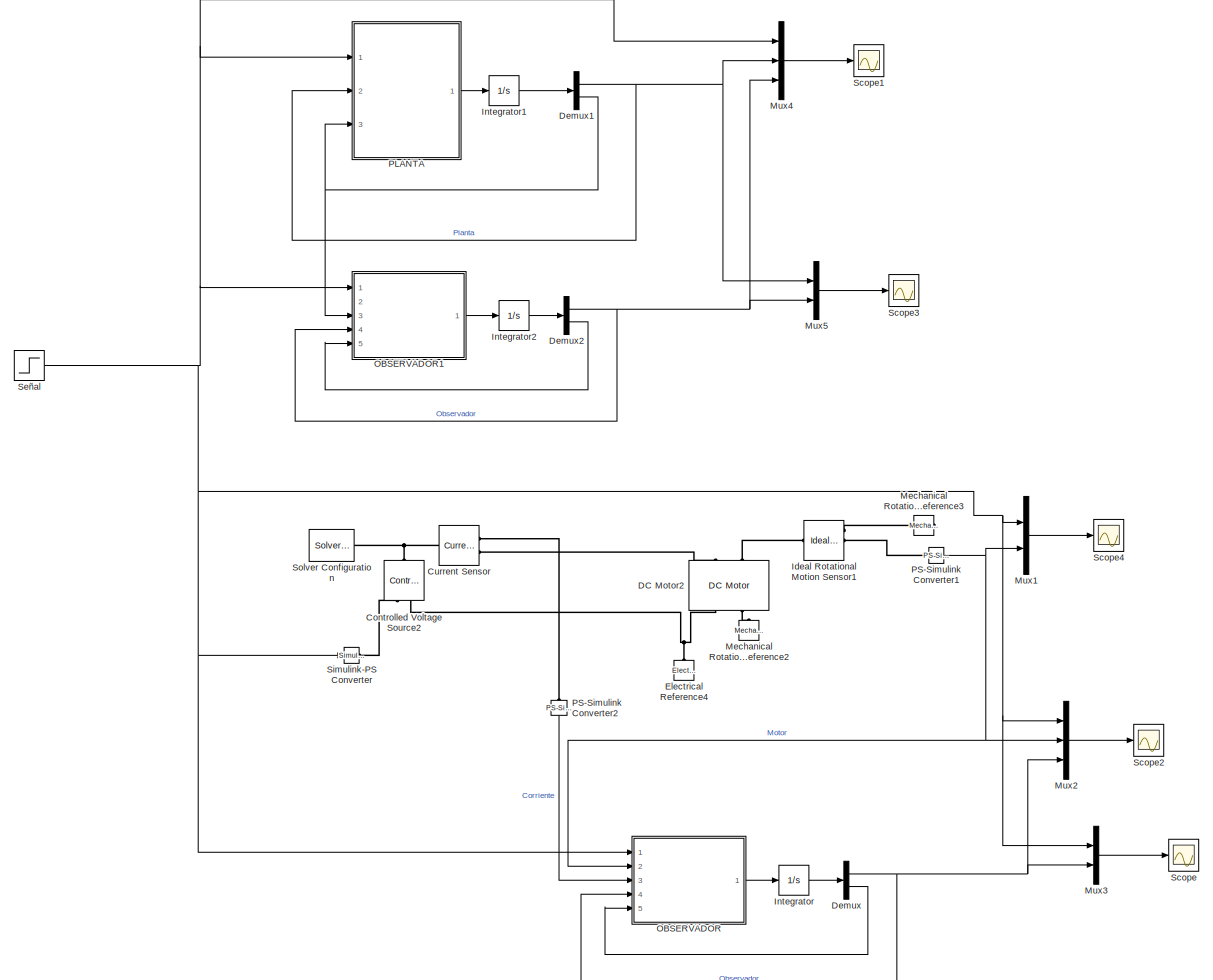
[diagram: root canvas - part 1/2, most of the canvas]
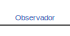
[diagram: root canvas - part 2/2, bottom center region]
MODEL slx_1d7b3e0388a3
KIND model
CONFIG AbsTol = auto
CONFIG EnableMultiTasking = off
CONFIG FixedStep = auto
CONFIG MaxStep = auto
CONFIG MinStep = auto
CONFIG RelTol = 1e-3
CONFIG SampleTimeConstraint = Unconstrained
CONFIG SolverName = VariableStepAuto
CONFIG StartTime = 0.0
CONFIG StopTime = 10.0
BLOCK [Reference] Controlled Voltage Source2  REF=fl_lib/Electrical/Electrical Sources/Controlled Voltage
Source
  NameLocation = right
  Ports = [0, 0, 0, 0, 0, 1, 2]
  SourceBlock = fl_lib/Electrical/Electrical Sources/Controlled Voltage\nSource
  SourceProductBaseCode = SS
  SourceType = Controlled Voltage\nSource
BLOCK [Reference] Current Sensor  REF=fl_lib/Electrical/Electrical Sensors/Current Sensor
  Ports = [0, 0, 0, 0, 0, 1, 2]
  SourceBlock = fl_lib/Electrical/Electrical Sensors/Current Sensor
  SourceProductBaseCode = SS
  SourceType = Current Sensor
BLOCK [Reference] DC Motor2  REF=ee_lib/Electromechanical/Brushed Motors/DC Motor
  NameLocation = right
  Ports = [0, 0, 0, 0, 0, 2, 2]
  SourceBlock = ee_lib/Electromechanical/Brushed Motors/DC Motor
  SourceProductBaseCode = PS
  SourceType = DC Motor
BLOCK [Demux] Demux
  Outputs = 2
  Ports = [1, 2]
BLOCK [Demux] Demux1
  Outputs = 2
  Ports = [1, 2]
BLOCK [Demux] Demux2
  Outputs = 2
  Ports = [1, 2]
BLOCK [Reference] Electrical Reference4  REF=fl_lib/Electrical/Electrical Elements/Electrical Reference
  NameLocation = right
  Ports = [0, 0, 0, 0, 0, 1]
  SourceBlock = fl_lib/Electrical/Electrical Elements/Electrical Reference
  SourceProductBaseCode = SS
  SourceType = Electrical Reference
BLOCK [Reference] Ideal Rotational Motion Sensor1  REF=fl_lib/Mechanical/Mechanical Sensors/Ideal Rotational
Motion Sensor
  Ports = [0, 0, 0, 0, 0, 1, 3]
  SourceBlock = fl_lib/Mechanical/Mechanical Sensors/Ideal Rotational\nMotion Sensor
  SourceProductBaseCode = SS
  SourceType = Ideal Rotational\nMotion Sensor
BLOCK [Integrator] Integrator
  Ports = [1, 1]
BLOCK [Integrator] Integrator1
  Ports = [1, 1]
BLOCK [Integrator] Integrator2
  Ports = [1, 1]
BLOCK [Reference] Mechanical Rotational Reference2  REF=fl_lib/Mechanical/Rotational Elements/Mechanical
Rotational Reference
  NameLocation = right
  Ports = [0, 0, 0, 0, 0, 1]
  SourceBlock = fl_lib/Mechanical/Rotational Elements/Mechanical\nRotational Reference
  SourceProductBaseCode = SS
  SourceType = Mechanical\nRotational Reference
BLOCK [Reference] Mechanical Rotational Reference3  REF=fl_lib/Mechanical/Rotational Elements/Mechanical
Rotational Reference
  NameLocation = top
  Ports = [0, 0, 0, 0, 0, 1]
  SourceBlock = fl_lib/Mechanical/Rotational Elements/Mechanical\nRotational Reference
  SourceProductBaseCode = SS
  SourceType = Mechanical\nRotational Reference
BLOCK [Mux] Mux1
  DisplayOption = bar
  Inputs = 2
  Ports = [2, 1]
BLOCK [Mux] Mux2
  DisplayOption = bar
  Inputs = 3
  Ports = [3, 1]
BLOCK [Mux] Mux3
  DisplayOption = bar
  Inputs = 2
  Ports = [2, 1]
BLOCK [Mux] Mux4
  DisplayOption = bar
  Inputs = 3
  Ports = [3, 1]
BLOCK [Mux] Mux5
  DisplayOption = bar
  Inputs = 2
  Ports = [2, 1]
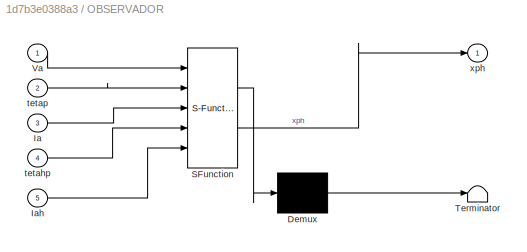
BLOCK [SubSystem] OBSERVADOR
  ErrorFcn = Stateflow.Translate.translate
  PermitHierarchicalResolution = ExplicitOnly
  Ports = [5, 1]
  RequestExecContextInheritance = off
  SFBlockType = MATLAB Function
  TreatAsAtomicUnit = on
BLOCK [Demux] OBSERVADOR/ Demux 
  Outputs = 1
  Ports = [1, 1]
BLOCK [S-Function] OBSERVADOR/ SFunction 
  EnableBusSupport = on
  FunctionName = sf_sfun
  PortCounts = [5 2]
  Ports = [5, 2]
  SFcnIsStateOwnerBlock = off
  SFunctionDeploymentMode = off
  Tag = Stateflow S-Function 2
BLOCK [Terminator] OBSERVADOR/ Terminator 
BLOCK [Inport] OBSERVADOR/Ia
  Port = 3
BLOCK [Inport] OBSERVADOR/Iah
  Port = 5
BLOCK [Inport] OBSERVADOR/Va
BLOCK [Inport] OBSERVADOR/tetahp
  Port = 4
BLOCK [Inport] OBSERVADOR/tetap
  Port = 2
BLOCK [Outport] OBSERVADOR/xph
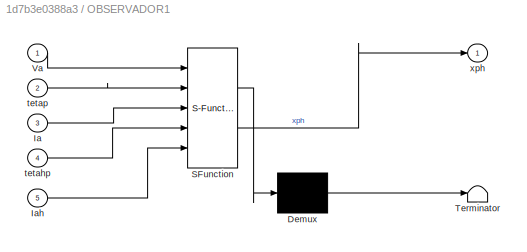
BLOCK [SubSystem] OBSERVADOR1
  ErrorFcn = Stateflow.Translate.translate
  PermitHierarchicalResolution = ExplicitOnly
  Ports = [5, 1]
  RequestExecContextInheritance = off
  SFBlockType = MATLAB Function
  TreatAsAtomicUnit = on
BLOCK [Demux] OBSERVADOR1/ Demux 
  Outputs = 1
  Ports = [1, 1]
BLOCK [S-Function] OBSERVADOR1/ SFunction 
  EnableBusSupport = on
  FunctionName = sf_sfun
  PortCounts = [5 2]
  Ports = [5, 2]
  SFcnIsStateOwnerBlock = off
  SFunctionDeploymentMode = off
  Tag = Stateflow S-Function 3
BLOCK [Terminator] OBSERVADOR1/ Terminator 
BLOCK [Inport] OBSERVADOR1/Ia
  Port = 3
BLOCK [Inport] OBSERVADOR1/Iah
  Port = 5
BLOCK [Inport] OBSERVADOR1/Va
BLOCK [Inport] OBSERVADOR1/tetahp
  Port = 4
BLOCK [Inport] OBSERVADOR1/tetap
  Port = 2
BLOCK [Outport] OBSERVADOR1/xph
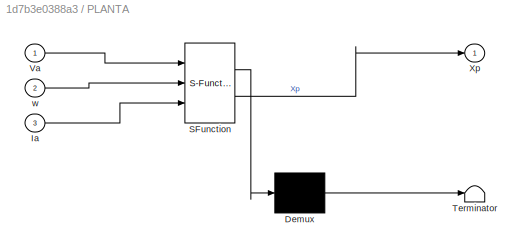
BLOCK [SubSystem] PLANTA
  ErrorFcn = Stateflow.Translate.translate
  PermitHierarchicalResolution = ExplicitOnly
  Ports = [3, 1]
  RequestExecContextInheritance = off
  SFBlockType = MATLAB Function
  TreatAsAtomicUnit = on
BLOCK [Demux] PLANTA/ Demux 
  Outputs = 1
  Ports = [1, 1]
BLOCK [S-Function] PLANTA/ SFunction 
  EnableBusSupport = on
  FunctionName = sf_sfun
  PortCounts = [3 2]
  Ports = [3, 2]
  SFcnIsStateOwnerBlock = off
  SFunctionDeploymentMode = off
  Tag = Stateflow S-Function 1
BLOCK [Terminator] PLANTA/ Terminator 
BLOCK [Inport] PLANTA/Ia
  Port = 3
BLOCK [Inport] PLANTA/Va
BLOCK [Outport] PLANTA/Xp
BLOCK [Inport] PLANTA/w
  Port = 2
BLOCK [Reference] PS-Simulink Converter1  REF=nesl_utility/PS-Simulink
Converter
  Ports = [0, 1, 0, 0, 0, 1]
  SourceBlock = nesl_utility/PS-Simulink\nConverter
  SourceProductBaseCode = SS
  SourceType = PS-Simulink\nConverter
BLOCK [Reference] PS-Simulink Converter2  REF=nesl_utility/PS-Simulink
Converter
  NameLocation = left
  Ports = [0, 1, 0, 0, 0, 1]
  SourceBlock = nesl_utility/PS-Simulink\nConverter
  SourceProductBaseCode = SS
  SourceType = PS-Simulink\nConverter
BLOCK [Scope] Scope
  Floating = off
  NumInputPorts = 1
  Ports = [1]
  ScopeSpecificationString = Simulink.scopes.TimeScopeBlockCfg('CurrentConfiguration', extmgr.ConfigurationSet(extmgr.Configuration('Core','General UI',true),extmgr.Configuration('Core','Source UI',true),extmgr.Configuration('Sources','WiredSimulink',true,'DataLoggingVariableName','ScopeData1'),extmgr.Configuration('Visuals','Time Domain',true,'SerializedDisplays',{struct('MinYLimReal','-5.04074','MaxYLimReal','45.36669','YLa...<+1483ch>
BLOCK [Scope] Scope1
  Floating = off
  NumInputPorts = 1
  Ports = [1]
  ScopeSpecificationString = Simulink.scopes.TimeScopeBlockCfg('CurrentConfiguration', extmgr.ConfigurationSet(extmgr.Configuration('Core','General UI',true),extmgr.Configuration('Core','Source UI',true),extmgr.Configuration('Sources','WiredSimulink',true,'DataLoggingVariableName','ScopeData3'),extmgr.Configuration('Visuals','Time Domain',true,'SerializedDisplays',{struct('MinYLimReal','17.59022','MaxYLimReal','17.61117','YLa...<+1560ch>
BLOCK [Scope] Scope2
  Floating = off
  NumInputPorts = 1
  Ports = [1]
  ScopeSpecificationString = Simulink.scopes.TimeScopeBlockCfg('CurrentConfiguration', extmgr.ConfigurationSet(extmgr.Configuration('Core','General UI',true),extmgr.Configuration('Core','Source UI',true),extmgr.Configuration('Sources','WiredSimulink',true,'DataLoggingVariableName','ScopeData2'),extmgr.Configuration('Visuals','Time Domain',true,'SerializedDisplays',{struct('MinYLimReal','-2.19974','MaxYLimReal','19.79763','YLa...<+1531ch>
BLOCK [Scope] Scope3
  Floating = off
  NumInputPorts = 1
  Ports = [1]
  ScopeSpecificationString = Simulink.scopes.TimeScopeBlockCfg('CurrentConfiguration', extmgr.ConfigurationSet(extmgr.Configuration('Core','General UI',true),extmgr.Configuration('Core','Source UI',true),extmgr.Configuration('Sources','WiredSimulink',true,'DataLoggingVariableName','ScopeData4'),extmgr.Configuration('Visuals','Time Domain',true,'SerializedDisplays',{struct('MinYLimReal','-2.19973','MaxYLimReal','19.79759','YLa...<+1482ch>
BLOCK [Scope] Scope4
  Floating = off
  NumInputPorts = 1
  Ports = [1]
  ScopeSpecificationString = Simulink.scopes.TimeScopeBlockCfg('CurrentConfiguration', extmgr.ConfigurationSet(extmgr.Configuration('Core','General UI',true),extmgr.Configuration('Core','Source UI',true),extmgr.Configuration('Sources','WiredSimulink',true),extmgr.Configuration('Visuals','Time Domain',true,'SerializedDisplays',{struct('MinYLimReal','-2.19973','MaxYLimReal','19.79759','YLabelReal','','MinYLimMag','0.00000','Max...<+1438ch>
BLOCK [Step] Señal
  After = pi/2
  SampleTime = 0
BLOCK [Reference] Simulink-PS Converter  REF=nesl_utility/Simulink-PS
Converter
  Ports = [1, 0, 0, 0, 0, 0, 1]
  SourceBlock = nesl_utility/Simulink-PS\nConverter
  SourceProductBaseCode = SS
  SourceType = Simulink-PS\nConverter
BLOCK [Reference] Solver Configuration  REF=nesl_utility/Solver
Configuration
  Ports = [0, 0, 0, 0, 0, 0, 1]
  SourceBlock = nesl_utility/Solver\nConfiguration
  SourceProductBaseCode = SS
  SourceType = Solver\nConfiguration
NET Demux1:1 -> Mux4:2, Mux5:1, PLANTA:2
NET Demux1:2 -> OBSERVADOR1:3, PLANTA:3
NET Demux2:1 -> Mux4:3, Mux5:2, OBSERVADOR1:4
LINE Demux2:2 -> OBSERVADOR1:5
NET Demux:1 -> Mux2:3, Mux3:2, OBSERVADOR:4
LINE Demux:2 -> OBSERVADOR:5
LINE Integrator1:1 -> Demux1:1
LINE Integrator2:1 -> Demux2:1
LINE Integrator:1 -> Demux:1
LINE Mux1:1 -> Scope4:1
LINE Mux2:1 -> Scope2:1
LINE Mux3:1 -> Scope:1
LINE Mux4:1 -> Scope1:1
LINE Mux5:1 -> Scope3:1
LINE OBSERVADOR1:1 -> Integrator2:1
LINE OBSERVADOR:1 -> Integrator:1
LINE PLANTA:1 -> Integrator1:1
NET PS-Simulink Converter1:1 -> Mux1:2, Mux2:2, OBSERVADOR:2
LINE PS-Simulink Converter2:1 -> OBSERVADOR:3
NET Señal:1 -> Mux1:1, Mux2:1, Mux3:1, Mux4:1, OBSERVADOR1:1, OBSERVADOR:1, PLANTA:1, Simulink-PS Converter:1
PNET net1: Controlled Voltage Source2:LConn1 -- Current Sensor:LConn1 -- Solver Configuration:RConn1
PLINE Controlled Voltage Source2:RConn1 -- Simulink-PS Converter:RConn1
PNET net2: Controlled Voltage Source2:RConn2 -- DC Motor2:RConn1 -- Electrical Reference4:LConn1
PLINE Current Sensor:RConn1 -- PS-Simulink Converter2:LConn1
PLINE Current Sensor:RConn2 -- DC Motor2:LConn1
PLINE DC Motor2:LConn2 -- Ideal Rotational Motion Sensor1:LConn1
PLINE DC Motor2:RConn2 -- Mechanical Rotational Reference2:LConn1
PLINE Ideal Rotational Motion Sensor1:RConn1 -- Mechanical Rotational Reference3:LConn1
PLINE Ideal Rotational Motion Sensor1:RConn2 -- PS-Simulink Converter1:LConn1
note: NET lines group one-source signal fan-out (src -> all destinations, sorted); 1:1 wires keep LINE; PNET lines group multi-terminal physical nets as a canonical sorted terminal list (undirected conserving connections); 2-terminal nets keep the pairwise PLINE form
CHART PLANTA states=1 transitions=1
  STATE_LABEL 'eML_blk_kernel()'
  STATE_LABEL 'SCRIPT:\nfunction Xp = fcn(Va, w, Ia)\n% Parámetros\nRa = 8.3;\nKe = 0.0879;\nKi = 0.0879;\nJ = 80.7e-6;\nB = 14.41e-6;\nTL = 0.1*0; % TL nulo\n\nLa = 1.51e-3;\n\n% tetapp = Ki / (J * Ra) * Va - Ki * Ke / (J * Ra) * tetap - B / J * tetap - 1 / J * TL;\nwp = (Ki / J) * Ia - B / J * w - 1 / J * TL;\nIap = 1 / La * Va - Ra / La * Ia - Ke / La * w;\n\nXp = [wp, Iap];'
CHART OBSERVADOR states=1 transitions=1
  STATE_LABEL 'eML_blk_kernel()'
  STATE_LABEL 'SCRIPT:\nfunction xph = fcn(Va, tetap, Ia, tetahp, Iah)\n% Parámetros\nRa = 8.3;\nLa = 1.51e-3;\nKe = 0.0879;\nKi = 0.0879;\nJ = 80.7e-6;\nB = 14.41e-6;\n\nA = [-B / J, Ki / J; -Ke/La, -Ra / La];\nB_mat = [0; 1 / La];\nC = [0, 1];\n\nx = [tetap; Ia];\nxh = [tetahp; Iah];\n\ny = C * x;\nyh = C * xh;\n\nK = [19.8214; 96.8214];\n% K = [6.18*1000; -7360];\n\n% xph = Axh + Bu + k(y-yh)\nxph = A * xh + B_mat * Va + K * (y - yh...<+4ch>'
CHART OBSERVADOR1 states=1 transitions=1
  STATE_LABEL 'eML_blk_kernel()'
  STATE_LABEL 'SCRIPT:\nfunction xph = fcn(Va, tetap, Ia, tetahp, Iah)\n% Parámetros\nRa = 8.3;\nLa = 1.51e-3;\nKe = 0.0879;\nKi = 0.0879;\nJ = 80.7e-6;\nB = 14.41e-6;\n\nA = [-B / J, Ki / J; -Ke/La, -Ra / La];\nB_mat = [0; 1 / La];\nC = [0, 1];\n\nx = [tetap; Ia];\nxh = [tetahp; Iah];\n\ny = C * x;\nyh = C * xh;\n\nK = [19.8214; 96.8214];\n% K = [6.18*1000; -7360];\n\n% xph = Axh + Bu + k(y-yh)\nxph = A * xh + B_mat * Va + K * (y - yh...<+4ch>'
CHART  states=0 transitions=0
CHART  states=0 transitions=0
CHART  states=0 transitions=0
